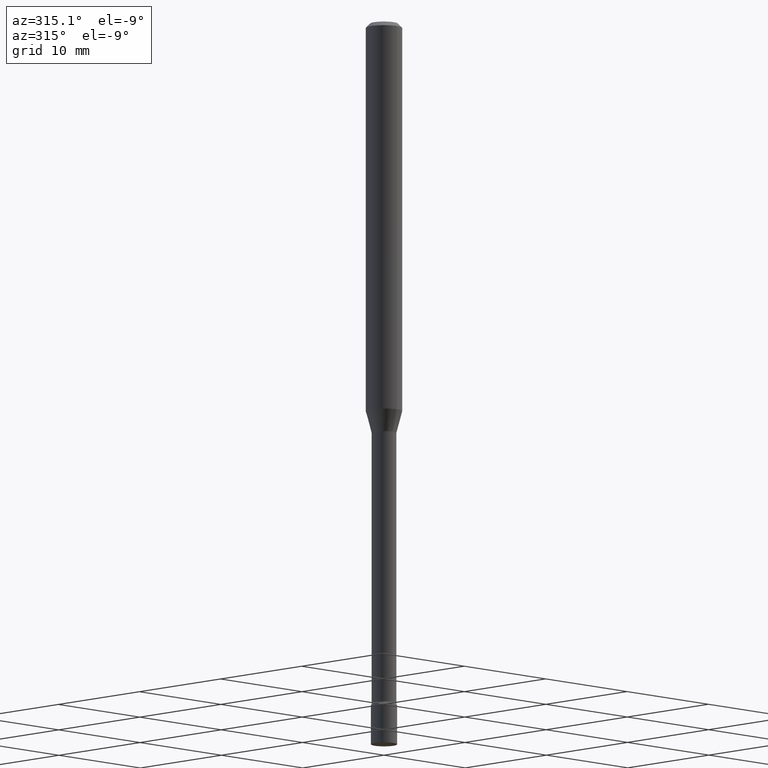
[diagram: clean part render]
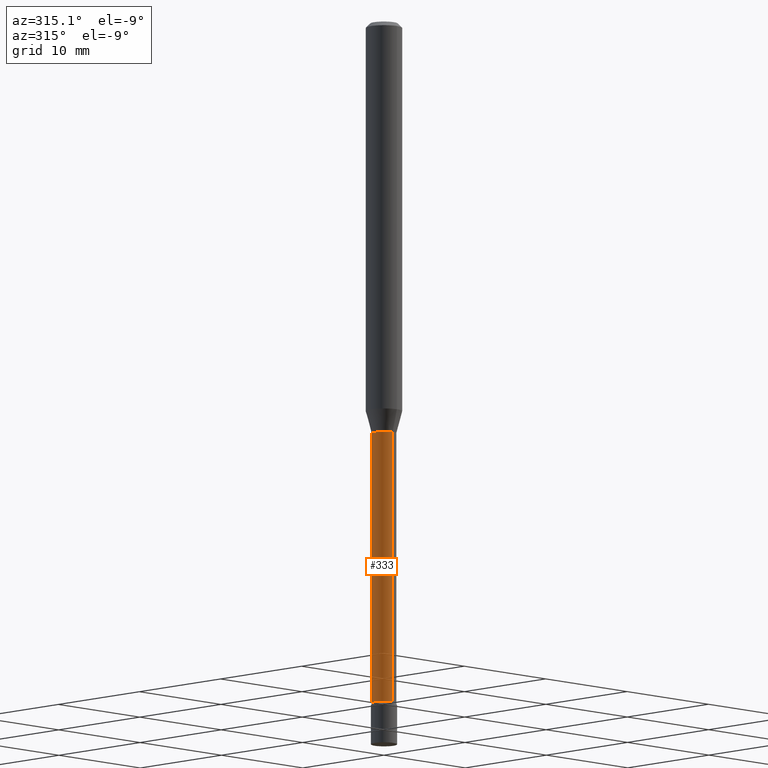
[diagram: same view with one face highlighted and labeled with its STEP entity id]
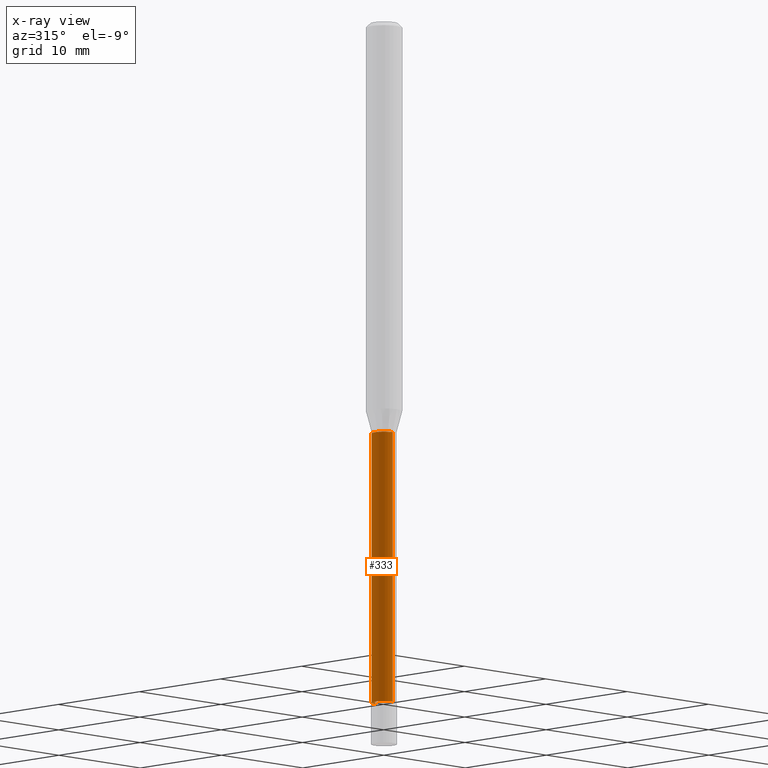
[diagram: x-ray of the same camera — body ghosted, the highlighted face saturated]
A machine part, auxiliary view. The second image highlights one B-rep face of the part: STEP entity #333.
The next image is the same camera in x-ray: the body ghosted, the highlighted face saturated — about 0% of this face is hidden behind the body in this view.
In plain terms, the highlighted cylindrical surface (edge-blend (fillet) strip) has radius 1.0744 mm, axis along (-0, 0, 1).
Its self-contained STEP definition (entity closure, byte-faithful):
#7 = CARTESIAN_POINT ( 'NONE',  ( 3.101519041593418202E-16, 0.04229999999999190657, -2.356414547187247965 ) ) ;
#9 = CARTESIAN_POINT ( 'NONE',  ( -2.953793212660724034E-16, -0.04230000000000836563, -2.356414547187247077 ) ) ;
#19 = EDGE_CURVE ( 'NONE', #298, #228, #145, .T. ) ;
#40 = EDGE_CURVE ( 'NONE', #228, #180, #68, .T. ) ;
#48 = VECTOR ( 'NONE', #94, 39.37007874015748143 ) ;
#59 = FACE_OUTER_BOUND ( 'NONE', #517, .T. ) ;
#68 = CIRCLE ( 'NONE', #279, 0.04230000000000001120 ) ;
#94 = DIRECTION ( 'NONE',  ( -2.445535940486029483E-29, 3.491385198703219756E-15, 1.000000000000000000 ) ) ;
#118 = CIRCLE ( 'NONE', #451, 0.04230000000000013610 ) ;
#142 = AXIS2_PLACEMENT_3D ( 'NONE', #168, #413, #170 ) ;
#145 = LINE ( 'NONE', #440, #289 ) ;
#158 = DIRECTION ( 'NONE',  ( -2.445535940486029483E-29, 3.491385198703219756E-15, 1.000000000000000000 ) ) ;
#168 = CARTESIAN_POINT ( 'NONE',  ( 0.000000000000000000, 0.000000000000000000, 0.000000000000000000 ) ) ;
#170 = DIRECTION ( 'NONE',  ( -6.982962677686266711E-15, -1.000000000000000000, 3.491385198703219756E-15 ) ) ;
#173 = DIRECTION ( 'NONE',  ( -2.445535940486029483E-29, 3.491385198703219756E-15, 1.000000000000000000 ) ) ;
#180 = VERTEX_POINT ( 'NONE', #276 ) ;
#188 = DIRECTION ( 'NONE',  ( -6.982962677686265133E-15, -1.000000000000000000, 6.458269488567996591E-15 ) ) ;
#207 = DIRECTION ( 'NONE',  ( -6.982962677686266711E-15, -1.000000000000000000, 6.458269488567977659E-15 ) ) ;
#228 = VERTEX_POINT ( 'NONE', #236 ) ;
#236 = CARTESIAN_POINT ( 'NONE',  ( 3.005595772265802916E-16, 0.04229999999999504295, -1.421974787463811563 ) ) ;
#259 = DIRECTION ( 'NONE',  ( -2.445535940486029483E-29, 3.491385198703219756E-15, 1.000000000000000000 ) ) ;
#276 = CARTESIAN_POINT ( 'NONE',  ( -2.953793212660943436E-16, -0.04230000000000497945, -1.421974787463810896 ) ) ;
#279 = AXIS2_PLACEMENT_3D ( 'NONE', #519, #259, #188 ) ;
#287 = VERTEX_POINT ( 'NONE', #9 ) ;
#289 = VECTOR ( 'NONE', #158, 39.37007874015748143 ) ;
#296 = ORIENTED_EDGE ( 'NONE', *, *, #382, .T. ) ;
#298 = VERTEX_POINT ( 'NONE', #7 ) ;
#331 = CARTESIAN_POINT ( 'NONE',  ( -2.953793212661295465E-16, -0.04230000000000006671, 1.476855939051464272E-16 ) ) ;
#332 = LINE ( 'NONE', #331, #48 ) ;
#333 = ADVANCED_FACE ( 'NONE', ( #59 ), #463, .T. ) ;
#339 = EDGE_CURVE ( 'NONE', #287, #180, #332, .T. ) ;
#382 = EDGE_CURVE ( 'NONE', #298, #287, #118, .T. ) ;
#388 = ORIENTED_EDGE ( 'NONE', *, *, #19, .F. ) ;
#413 = DIRECTION ( 'NONE',  ( -2.445535940486029483E-29, 3.491385198703219756E-15, 1.000000000000000000 ) ) ;
#440 = CARTESIAN_POINT ( 'NONE',  ( 3.005595772265228033E-16, 0.04230000000000006671, -1.476855939051464272E-16 ) ) ;
#451 = AXIS2_PLACEMENT_3D ( 'NONE', #457, #173, #207 ) ;
#457 = CARTESIAN_POINT ( 'NONE',  ( 5.762696465830526274E-29, -8.227150872058505933E-15, -2.356414547187247521 ) ) ;
#458 = ORIENTED_EDGE ( 'NONE', *, *, #40, .F. ) ;
#462 = ORIENTED_EDGE ( 'NONE', *, *, #339, .T. ) ;
#463 = CYLINDRICAL_SURFACE ( 'NONE', #142, 0.04230000000000006671 ) ;
#517 = EDGE_LOOP ( 'NONE', ( #388, #296, #462, #458 ) ) ;
#519 = CARTESIAN_POINT ( 'NONE',  ( 3.477490449207734053E-29, -4.964661725880308206E-15, -1.421974787463811118 ) ) ;